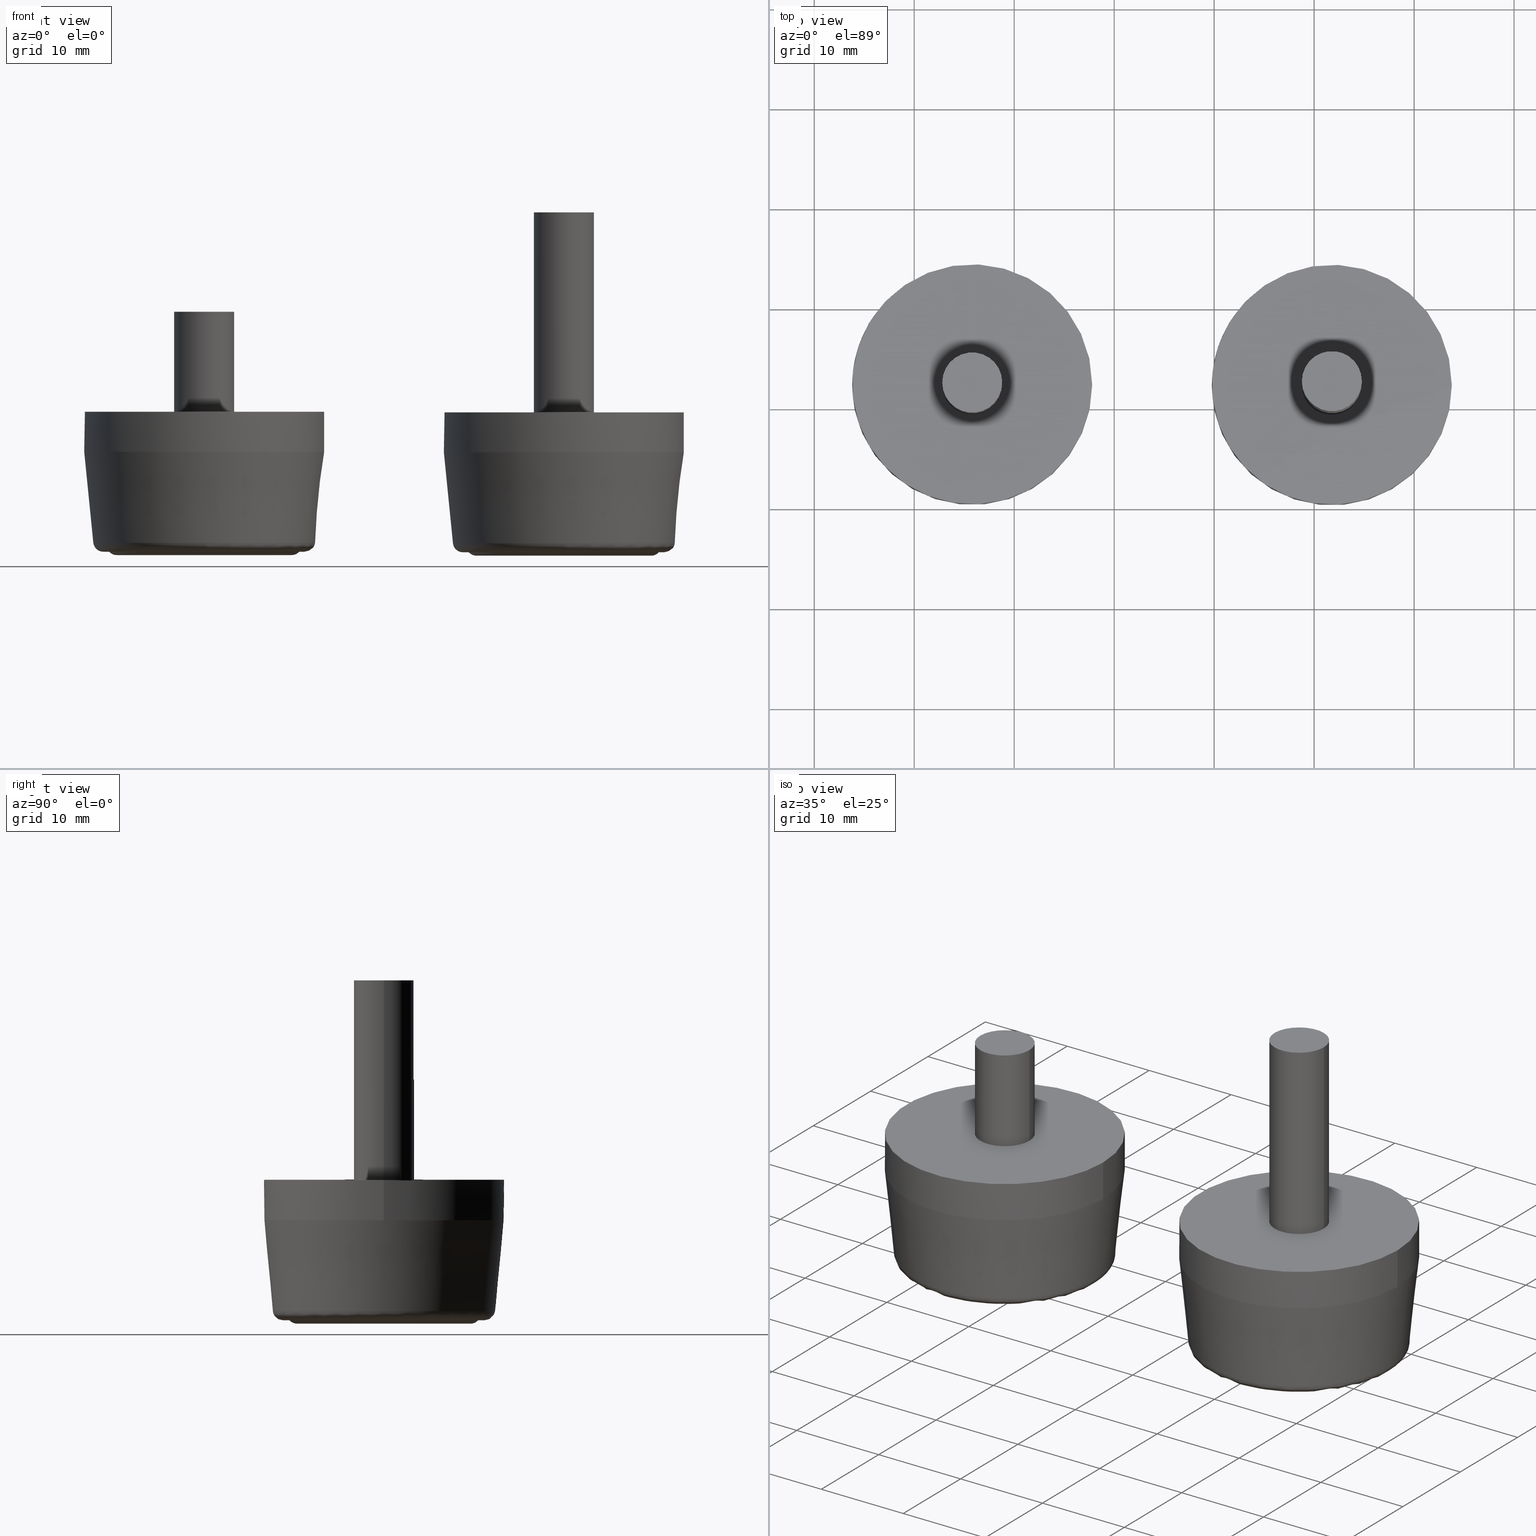
[diagram: canonical four-view strip — front | top / right | iso, engineering-drawing reading convention]
A machine part, canonical four-view strip (front | top / right | iso — engineering-drawing reading convention). The complete STEP part file that produces these views, byte-faithful:
ISO-10303-21;
HEADER;
/* Generated by software containing ST-Developer
 * from STEP Tools, Inc. (www.steptools.com) 
 */

FILE_DESCRIPTION(
/* description */ (''),
/* implementation_level */ '2;1');

FILE_NAME(
/* name */ '\\\\SYNOLOGYNAS\\web\\db2\\PRM6-1\\\X2\B3C4BA74\X0\\\DR_PR
M6-1.stp',
/* time_stamp */ '2023-04-18T16:37:41+09:00',
/* author */ ('user'),
/* organization */ (''),
/* preprocessor_version */ 'ST-DEVELOPER v15.6',
/* originating_system */ 'Autodesk Inventor 2015',
/* authorisation */ '');

FILE_SCHEMA (('AUTOMOTIVE_DESIGN { 1 0 10303 214 3 1 1 }'));
ENDSEC;

DATA;
#10=MECHANICAL_DESIGN_GEOMETRIC_PRESENTATION_REPRESENTATION('',(#23,#24),
#468);
#11=ITEM_DEFINED_TRANSFORMATION($,$,#253,#298);
#12=ITEM_DEFINED_TRANSFORMATION($,$,#275,#299);
#13=(
REPRESENTATION_RELATIONSHIP($,$,#483,#485)
REPRESENTATION_RELATIONSHIP_WITH_TRANSFORMATION(#11)
SHAPE_REPRESENTATION_RELATIONSHIP()
);
#14=(
REPRESENTATION_RELATIONSHIP($,$,#484,#485)
REPRESENTATION_RELATIONSHIP_WITH_TRANSFORMATION(#12)
SHAPE_REPRESENTATION_RELATIONSHIP()
);
#15=CONTEXT_DEPENDENT_SHAPE_REPRESENTATION(#13,#481);
#16=CONTEXT_DEPENDENT_SHAPE_REPRESENTATION(#14,#482);
#17=NEXT_ASSEMBLY_USAGE_OCCURRENCE('DR_PRM6-1(10):1',$,$,#489,#487,$);
#18=NEXT_ASSEMBLY_USAGE_OCCURRENCE('DR_PRM6-1(20):1',$,$,#489,#488,$);
#19=SHAPE_REPRESENTATION_RELATIONSHIP('SRR','None',#483,#21);
#20=SHAPE_REPRESENTATION_RELATIONSHIP('SRR','None',#484,#22);
#21=ADVANCED_BREP_SHAPE_REPRESENTATION($,(#25),#465);
#22=ADVANCED_BREP_SHAPE_REPRESENTATION($,(#26),#466);
#23=STYLED_ITEM('',(#502),#25);
#24=STYLED_ITEM('',(#502),#26);
#25=MANIFOLD_SOLID_BREP('\X2\C194B9ACB4DC\X0\1',#251);
#26=MANIFOLD_SOLID_BREP('\X2\C194B9ACB4DC\X0\1',#252);
#27=CONICAL_SURFACE('',#270,12.,5.71059313749965);
#28=CONICAL_SURFACE('',#292,12.,5.71059313749965);
#29=TOROIDAL_SURFACE('',#258,3.75,1.);
#30=TOROIDAL_SURFACE('',#261,8.75,1.);
#31=TOROIDAL_SURFACE('',#267,10.0950124378879,1.);
#32=TOROIDAL_SURFACE('',#280,3.75,1.);
#33=TOROIDAL_SURFACE('',#283,8.75,1.);
#34=TOROIDAL_SURFACE('',#289,10.0950124378879,1.);
#35=PLANE('',#257);
#36=PLANE('',#264);
#37=PLANE('',#266);
#38=PLANE('',#269);
#39=PLANE('',#274);
#40=PLANE('',#279);
#41=PLANE('',#286);
#42=PLANE('',#288);
#43=PLANE('',#291);
#44=PLANE('',#296);
#45=FACE_BOUND('',#86,.T.);
#46=FACE_BOUND('',#89,.T.);
#47=FACE_BOUND('',#91,.T.);
#48=FACE_BOUND('',#93,.T.);
#49=FACE_BOUND('',#95,.T.);
#50=FACE_BOUND('',#97,.T.);
#51=FACE_BOUND('',#100,.T.);
#52=FACE_BOUND('',#102,.T.);
#53=FACE_BOUND('',#104,.T.);
#54=FACE_BOUND('',#106,.T.);
#55=FACE_BOUND('',#109,.T.);
#56=FACE_BOUND('',#111,.T.);
#57=FACE_BOUND('',#113,.T.);
#58=FACE_BOUND('',#115,.T.);
#59=FACE_BOUND('',#117,.T.);
#60=FACE_BOUND('',#120,.T.);
#61=FACE_BOUND('',#122,.T.);
#62=FACE_BOUND('',#124,.T.);
#63=FACE_OUTER_BOUND('',#85,.T.);
#64=FACE_OUTER_BOUND('',#87,.T.);
#65=FACE_OUTER_BOUND('',#88,.T.);
#66=FACE_OUTER_BOUND('',#90,.T.);
#67=FACE_OUTER_BOUND('',#92,.T.);
#68=FACE_OUTER_BOUND('',#94,.T.);
#69=FACE_OUTER_BOUND('',#96,.T.);
#70=FACE_OUTER_BOUND('',#98,.T.);
#71=FACE_OUTER_BOUND('',#99,.T.);
#72=FACE_OUTER_BOUND('',#101,.T.);
#73=FACE_OUTER_BOUND('',#103,.T.);
#74=FACE_OUTER_BOUND('',#105,.T.);
#75=FACE_OUTER_BOUND('',#107,.T.);
#76=FACE_OUTER_BOUND('',#108,.T.);
#77=FACE_OUTER_BOUND('',#110,.T.);
#78=FACE_OUTER_BOUND('',#112,.T.);
#79=FACE_OUTER_BOUND('',#114,.T.);
#80=FACE_OUTER_BOUND('',#116,.T.);
#81=FACE_OUTER_BOUND('',#118,.T.);
#82=FACE_OUTER_BOUND('',#119,.T.);
#83=FACE_OUTER_BOUND('',#121,.T.);
#84=FACE_OUTER_BOUND('',#123,.T.);
#85=EDGE_LOOP('',(#185));
#86=EDGE_LOOP('',(#186));
#87=EDGE_LOOP('',(#187));
#88=EDGE_LOOP('',(#188));
#89=EDGE_LOOP('',(#189));
#90=EDGE_LOOP('',(#190));
#91=EDGE_LOOP('',(#191));
#92=EDGE_LOOP('',(#192));
#93=EDGE_LOOP('',(#193));
#94=EDGE_LOOP('',(#194));
#95=EDGE_LOOP('',(#195));
#96=EDGE_LOOP('',(#196));
#97=EDGE_LOOP('',(#197));
#98=EDGE_LOOP('',(#198));
#99=EDGE_LOOP('',(#199));
#100=EDGE_LOOP('',(#200));
#101=EDGE_LOOP('',(#201));
#102=EDGE_LOOP('',(#202));
#103=EDGE_LOOP('',(#203));
#104=EDGE_LOOP('',(#204));
#105=EDGE_LOOP('',(#205));
#106=EDGE_LOOP('',(#206));
#107=EDGE_LOOP('',(#207));
#108=EDGE_LOOP('',(#208));
#109=EDGE_LOOP('',(#209));
#110=EDGE_LOOP('',(#210));
#111=EDGE_LOOP('',(#211));
#112=EDGE_LOOP('',(#212));
#113=EDGE_LOOP('',(#213));
#114=EDGE_LOOP('',(#214));
#115=EDGE_LOOP('',(#215));
#116=EDGE_LOOP('',(#216));
#117=EDGE_LOOP('',(#217));
#118=EDGE_LOOP('',(#218));
#119=EDGE_LOOP('',(#219));
#120=EDGE_LOOP('',(#220));
#121=EDGE_LOOP('',(#221));
#122=EDGE_LOOP('',(#222));
#123=EDGE_LOOP('',(#223));
#124=EDGE_LOOP('',(#224));
#125=CIRCLE('',#255,3.);
#126=CIRCLE('',#256,3.);
#127=CIRCLE('',#259,3.);
#128=CIRCLE('',#260,4.5);
#129=CIRCLE('',#262,8.);
#130=CIRCLE('',#263,9.5);
#131=CIRCLE('',#265,10.0950124378879);
#132=CIRCLE('',#268,11.0900496280979);
#133=CIRCLE('',#271,12.);
#134=CIRCLE('',#273,12.);
#135=CIRCLE('',#277,3.);
#136=CIRCLE('',#278,3.);
#137=CIRCLE('',#281,3.);
#138=CIRCLE('',#282,4.5);
#139=CIRCLE('',#284,8.);
#140=CIRCLE('',#285,9.5);
#141=CIRCLE('',#287,10.0950124378879);
#142=CIRCLE('',#290,11.0900496280979);
#143=CIRCLE('',#293,12.);
#144=CIRCLE('',#295,12.);
#145=VERTEX_POINT('',#396);
#146=VERTEX_POINT('',#398);
#147=VERTEX_POINT('',#402);
#148=VERTEX_POINT('',#404);
#149=VERTEX_POINT('',#407);
#150=VERTEX_POINT('',#409);
#151=VERTEX_POINT('',#412);
#152=VERTEX_POINT('',#416);
#153=VERTEX_POINT('',#420);
#154=VERTEX_POINT('',#423);
#155=VERTEX_POINT('',#428);
#156=VERTEX_POINT('',#430);
#157=VERTEX_POINT('',#434);
#158=VERTEX_POINT('',#436);
#159=VERTEX_POINT('',#439);
#160=VERTEX_POINT('',#441);
#161=VERTEX_POINT('',#444);
#162=VERTEX_POINT('',#448);
#163=VERTEX_POINT('',#452);
#164=VERTEX_POINT('',#455);
#165=EDGE_CURVE('',#145,#145,#125,.T.);
#166=EDGE_CURVE('',#146,#146,#126,.T.);
#167=EDGE_CURVE('',#147,#147,#127,.T.);
#168=EDGE_CURVE('',#148,#148,#128,.T.);
#169=EDGE_CURVE('',#149,#149,#129,.T.);
#170=EDGE_CURVE('',#150,#150,#130,.T.);
#171=EDGE_CURVE('',#151,#151,#131,.T.);
#172=EDGE_CURVE('',#152,#152,#132,.T.);
#173=EDGE_CURVE('',#153,#153,#133,.T.);
#174=EDGE_CURVE('',#154,#154,#134,.T.);
#175=EDGE_CURVE('',#155,#155,#135,.T.);
#176=EDGE_CURVE('',#156,#156,#136,.T.);
#177=EDGE_CURVE('',#157,#157,#137,.T.);
#178=EDGE_CURVE('',#158,#158,#138,.T.);
#179=EDGE_CURVE('',#159,#159,#139,.T.);
#180=EDGE_CURVE('',#160,#160,#140,.T.);
#181=EDGE_CURVE('',#161,#161,#141,.T.);
#182=EDGE_CURVE('',#162,#162,#142,.T.);
#183=EDGE_CURVE('',#163,#163,#143,.T.);
#184=EDGE_CURVE('',#164,#164,#144,.T.);
#185=ORIENTED_EDGE('',*,*,#165,.F.);
#186=ORIENTED_EDGE('',*,*,#166,.F.);
#187=ORIENTED_EDGE('',*,*,#165,.T.);
#188=ORIENTED_EDGE('',*,*,#167,.F.);
#189=ORIENTED_EDGE('',*,*,#168,.F.);
#190=ORIENTED_EDGE('',*,*,#169,.F.);
#191=ORIENTED_EDGE('',*,*,#170,.F.);
#192=ORIENTED_EDGE('',*,*,#171,.F.);
#193=ORIENTED_EDGE('',*,*,#170,.T.);
#194=ORIENTED_EDGE('',*,*,#169,.T.);
#195=ORIENTED_EDGE('',*,*,#168,.T.);
#196=ORIENTED_EDGE('',*,*,#171,.T.);
#197=ORIENTED_EDGE('',*,*,#172,.T.);
#198=ORIENTED_EDGE('',*,*,#167,.T.);
#199=ORIENTED_EDGE('',*,*,#173,.T.);
#200=ORIENTED_EDGE('',*,*,#172,.F.);
#201=ORIENTED_EDGE('',*,*,#174,.F.);
#202=ORIENTED_EDGE('',*,*,#173,.F.);
#203=ORIENTED_EDGE('',*,*,#174,.T.);
#204=ORIENTED_EDGE('',*,*,#166,.T.);
#205=ORIENTED_EDGE('',*,*,#175,.F.);
#206=ORIENTED_EDGE('',*,*,#176,.F.);
#207=ORIENTED_EDGE('',*,*,#175,.T.);
#208=ORIENTED_EDGE('',*,*,#177,.F.);
#209=ORIENTED_EDGE('',*,*,#178,.F.);
#210=ORIENTED_EDGE('',*,*,#179,.F.);
#211=ORIENTED_EDGE('',*,*,#180,.F.);
#212=ORIENTED_EDGE('',*,*,#181,.F.);
#213=ORIENTED_EDGE('',*,*,#180,.T.);
#214=ORIENTED_EDGE('',*,*,#179,.T.);
#215=ORIENTED_EDGE('',*,*,#178,.T.);
#216=ORIENTED_EDGE('',*,*,#181,.T.);
#217=ORIENTED_EDGE('',*,*,#182,.T.);
#218=ORIENTED_EDGE('',*,*,#177,.T.);
#219=ORIENTED_EDGE('',*,*,#183,.T.);
#220=ORIENTED_EDGE('',*,*,#182,.F.);
#221=ORIENTED_EDGE('',*,*,#184,.F.);
#222=ORIENTED_EDGE('',*,*,#183,.F.);
#223=ORIENTED_EDGE('',*,*,#184,.T.);
#224=ORIENTED_EDGE('',*,*,#176,.T.);
#225=CYLINDRICAL_SURFACE('',#254,3.);
#226=CYLINDRICAL_SURFACE('',#272,12.);
#227=CYLINDRICAL_SURFACE('',#276,3.);
#228=CYLINDRICAL_SURFACE('',#294,12.);
#229=ADVANCED_FACE('',(#63,#45),#225,.T.);
#230=ADVANCED_FACE('',(#64),#35,.T.);
#231=ADVANCED_FACE('',(#65,#46),#29,.T.);
#232=ADVANCED_FACE('',(#66,#47),#30,.T.);
#233=ADVANCED_FACE('',(#67,#48),#36,.F.);
#234=ADVANCED_FACE('',(#68,#49),#37,.F.);
#235=ADVANCED_FACE('',(#69,#50),#31,.T.);
#236=ADVANCED_FACE('',(#70),#38,.F.);
#237=ADVANCED_FACE('',(#71,#51),#27,.T.);
#238=ADVANCED_FACE('',(#72,#52),#226,.T.);
#239=ADVANCED_FACE('',(#73,#53),#39,.T.);
#240=ADVANCED_FACE('',(#74,#54),#227,.T.);
#241=ADVANCED_FACE('',(#75),#40,.T.);
#242=ADVANCED_FACE('',(#76,#55),#32,.T.);
#243=ADVANCED_FACE('',(#77,#56),#33,.T.);
#244=ADVANCED_FACE('',(#78,#57),#41,.F.);
#245=ADVANCED_FACE('',(#79,#58),#42,.F.);
#246=ADVANCED_FACE('',(#80,#59),#34,.T.);
#247=ADVANCED_FACE('',(#81),#43,.F.);
#248=ADVANCED_FACE('',(#82,#60),#28,.T.);
#249=ADVANCED_FACE('',(#83,#61),#228,.T.);
#250=ADVANCED_FACE('',(#84,#62),#44,.T.);
#251=CLOSED_SHELL('',(#229,#230,#231,#232,#233,#234,#235,#236,#237,#238,
#239));
#252=CLOSED_SHELL('',(#240,#241,#242,#243,#244,#245,#246,#247,#248,#249,
#250));
#253=AXIS2_PLACEMENT_3D('placement',#394,#300,#301);
#254=AXIS2_PLACEMENT_3D('',#395,#302,#303);
#255=AXIS2_PLACEMENT_3D('',#397,#304,#305);
#256=AXIS2_PLACEMENT_3D('',#399,#306,#307);
#257=AXIS2_PLACEMENT_3D('',#400,#308,#309);
#258=AXIS2_PLACEMENT_3D('',#401,#310,#311);
#259=AXIS2_PLACEMENT_3D('',#403,#312,#313);
#260=AXIS2_PLACEMENT_3D('',#405,#314,#315);
#261=AXIS2_PLACEMENT_3D('',#406,#316,#317);
#262=AXIS2_PLACEMENT_3D('',#408,#318,#319);
#263=AXIS2_PLACEMENT_3D('',#410,#320,#321);
#264=AXIS2_PLACEMENT_3D('',#411,#322,#323);
#265=AXIS2_PLACEMENT_3D('',#413,#324,#325);
#266=AXIS2_PLACEMENT_3D('',#414,#326,#327);
#267=AXIS2_PLACEMENT_3D('',#415,#328,#329);
#268=AXIS2_PLACEMENT_3D('',#417,#330,#331);
#269=AXIS2_PLACEMENT_3D('',#418,#332,#333);
#270=AXIS2_PLACEMENT_3D('',#419,#334,#335);
#271=AXIS2_PLACEMENT_3D('',#421,#336,#337);
#272=AXIS2_PLACEMENT_3D('',#422,#338,#339);
#273=AXIS2_PLACEMENT_3D('',#424,#340,#341);
#274=AXIS2_PLACEMENT_3D('',#425,#342,#343);
#275=AXIS2_PLACEMENT_3D('placement',#426,#344,#345);
#276=AXIS2_PLACEMENT_3D('',#427,#346,#347);
#277=AXIS2_PLACEMENT_3D('',#429,#348,#349);
#278=AXIS2_PLACEMENT_3D('',#431,#350,#351);
#279=AXIS2_PLACEMENT_3D('',#432,#352,#353);
#280=AXIS2_PLACEMENT_3D('',#433,#354,#355);
#281=AXIS2_PLACEMENT_3D('',#435,#356,#357);
#282=AXIS2_PLACEMENT_3D('',#437,#358,#359);
#283=AXIS2_PLACEMENT_3D('',#438,#360,#361);
#284=AXIS2_PLACEMENT_3D('',#440,#362,#363);
#285=AXIS2_PLACEMENT_3D('',#442,#364,#365);
#286=AXIS2_PLACEMENT_3D('',#443,#366,#367);
#287=AXIS2_PLACEMENT_3D('',#445,#368,#369);
#288=AXIS2_PLACEMENT_3D('',#446,#370,#371);
#289=AXIS2_PLACEMENT_3D('',#447,#372,#373);
#290=AXIS2_PLACEMENT_3D('',#449,#374,#375);
#291=AXIS2_PLACEMENT_3D('',#450,#376,#377);
#292=AXIS2_PLACEMENT_3D('',#451,#378,#379);
#293=AXIS2_PLACEMENT_3D('',#453,#380,#381);
#294=AXIS2_PLACEMENT_3D('',#454,#382,#383);
#295=AXIS2_PLACEMENT_3D('',#456,#384,#385);
#296=AXIS2_PLACEMENT_3D('',#457,#386,#387);
#297=AXIS2_PLACEMENT_3D('placement',#458,#388,#389);
#298=AXIS2_PLACEMENT_3D('',#459,#390,#391);
#299=AXIS2_PLACEMENT_3D('',#460,#392,#393);
#300=DIRECTION('axis',(0.,0.,1.));
#301=DIRECTION('refdir',(1.,0.,0.));
#302=DIRECTION('center_axis',(0.,0.,1.));
#303=DIRECTION('ref_axis',(-1.,0.,0.));
#304=DIRECTION('center_axis',(0.,0.,1.));
#305=DIRECTION('ref_axis',(-1.,0.,0.));
#306=DIRECTION('center_axis',(0.,0.,-1.));
#307=DIRECTION('ref_axis',(-1.,0.,0.));
#308=DIRECTION('center_axis',(0.,0.,1.));
#309=DIRECTION('ref_axis',(1.,0.,0.));
#310=DIRECTION('center_axis',(0.,0.,-1.));
#311=DIRECTION('ref_axis',(-1.,0.,0.));
#312=DIRECTION('center_axis',(0.,0.,-1.));
#313=DIRECTION('ref_axis',(1.,0.,0.));
#314=DIRECTION('center_axis',(0.,0.,1.));
#315=DIRECTION('ref_axis',(1.,0.,0.));
#316=DIRECTION('center_axis',(0.,0.,-1.));
#317=DIRECTION('ref_axis',(-1.,0.,0.));
#318=DIRECTION('center_axis',(0.,0.,-1.));
#319=DIRECTION('ref_axis',(1.,0.,0.));
#320=DIRECTION('center_axis',(0.,0.,1.));
#321=DIRECTION('ref_axis',(1.,0.,0.));
#322=DIRECTION('center_axis',(0.,0.,1.));
#323=DIRECTION('ref_axis',(1.,0.,0.));
#324=DIRECTION('center_axis',(0.,0.,1.));
#325=DIRECTION('ref_axis',(1.,-1.22464679914735E-16,0.));
#326=DIRECTION('center_axis',(0.,0.,1.));
#327=DIRECTION('ref_axis',(1.,0.,0.));
#328=DIRECTION('center_axis',(0.,0.,1.));
#329=DIRECTION('ref_axis',(1.,0.,0.));
#330=DIRECTION('center_axis',(0.,0.,-1.));
#331=DIRECTION('ref_axis',(1.,-1.22464679914735E-16,0.));
#332=DIRECTION('center_axis',(0.,0.,1.));
#333=DIRECTION('ref_axis',(1.,0.,0.));
#334=DIRECTION('center_axis',(0.,0.,1.));
#335=DIRECTION('ref_axis',(-1.,0.,0.));
#336=DIRECTION('center_axis',(0.,0.,-1.));
#337=DIRECTION('ref_axis',(-1.,0.,0.));
#338=DIRECTION('center_axis',(0.,0.,1.));
#339=DIRECTION('ref_axis',(-1.,0.,0.));
#340=DIRECTION('center_axis',(0.,0.,1.));
#341=DIRECTION('ref_axis',(-1.,0.,0.));
#342=DIRECTION('center_axis',(0.,0.,1.));
#343=DIRECTION('ref_axis',(1.,0.,0.));
#344=DIRECTION('axis',(0.,0.,1.));
#345=DIRECTION('refdir',(1.,0.,0.));
#346=DIRECTION('center_axis',(0.,0.,1.));
#347=DIRECTION('ref_axis',(-1.,0.,0.));
#348=DIRECTION('center_axis',(0.,0.,1.));
#349=DIRECTION('ref_axis',(-1.,0.,0.));
#350=DIRECTION('center_axis',(0.,0.,-1.));
#351=DIRECTION('ref_axis',(-1.,0.,0.));
#352=DIRECTION('center_axis',(0.,0.,1.));
#353=DIRECTION('ref_axis',(1.,0.,0.));
#354=DIRECTION('center_axis',(0.,0.,-1.));
#355=DIRECTION('ref_axis',(-1.,0.,0.));
#356=DIRECTION('center_axis',(0.,0.,-1.));
#357=DIRECTION('ref_axis',(1.,0.,0.));
#358=DIRECTION('center_axis',(0.,0.,1.));
#359=DIRECTION('ref_axis',(1.,0.,0.));
#360=DIRECTION('center_axis',(0.,0.,-1.));
#361=DIRECTION('ref_axis',(-1.,0.,0.));
#362=DIRECTION('center_axis',(0.,0.,-1.));
#363=DIRECTION('ref_axis',(1.,0.,0.));
#364=DIRECTION('center_axis',(0.,0.,1.));
#365=DIRECTION('ref_axis',(1.,0.,0.));
#366=DIRECTION('center_axis',(0.,0.,1.));
#367=DIRECTION('ref_axis',(1.,0.,0.));
#368=DIRECTION('center_axis',(0.,0.,1.));
#369=DIRECTION('ref_axis',(1.,-1.22464679914735E-16,0.));
#370=DIRECTION('center_axis',(0.,0.,1.));
#371=DIRECTION('ref_axis',(1.,0.,0.));
#372=DIRECTION('center_axis',(0.,0.,1.));
#373=DIRECTION('ref_axis',(1.,0.,0.));
#374=DIRECTION('center_axis',(0.,0.,-1.));
#375=DIRECTION('ref_axis',(1.,-1.22464679914735E-16,0.));
#376=DIRECTION('center_axis',(0.,0.,1.));
#377=DIRECTION('ref_axis',(1.,0.,0.));
#378=DIRECTION('center_axis',(0.,0.,1.));
#379=DIRECTION('ref_axis',(-1.,0.,0.));
#380=DIRECTION('center_axis',(0.,0.,-1.));
#381=DIRECTION('ref_axis',(-1.,0.,0.));
#382=DIRECTION('center_axis',(0.,0.,1.));
#383=DIRECTION('ref_axis',(-1.,0.,0.));
#384=DIRECTION('center_axis',(0.,0.,1.));
#385=DIRECTION('ref_axis',(-1.,0.,0.));
#386=DIRECTION('center_axis',(0.,0.,1.));
#387=DIRECTION('ref_axis',(1.,0.,0.));
#388=DIRECTION('axis',(0.,0.,1.));
#389=DIRECTION('refdir',(1.,0.,0.));
#390=DIRECTION('',(5.55111512312578E-17,0.,1.));
#391=DIRECTION('',(1.,-1.11022302462516E-16,-5.55111512312578E-17));
#392=DIRECTION('',(4.35415592470176E-16,9.43689570931381E-16,1.));
#393=DIRECTION('',(1.,2.36616282123236E-15,-4.35415592470178E-16));
#394=CARTESIAN_POINT('',(0.,0.,0.));
#395=CARTESIAN_POINT('Origin',(0.,0.,14.));
#396=CARTESIAN_POINT('',(3.,3.67394039744206E-16,24.));
#397=CARTESIAN_POINT('Origin',(0.,0.,24.));
#398=CARTESIAN_POINT('',(3.,3.67394039744206E-16,14.));
#399=CARTESIAN_POINT('Origin',(0.,0.,14.));
#400=CARTESIAN_POINT('Origin',(-1.84813812287733E-16,-7.70988211545247E-17,
24.));
#401=CARTESIAN_POINT('Origin',(0.,0.,0.661437827766148));
#402=CARTESIAN_POINT('',(-3.,3.67394039744206E-16,0.));
#403=CARTESIAN_POINT('Origin',(0.,0.,0.));
#404=CARTESIAN_POINT('',(-4.5,5.51091059616309E-16,0.));
#405=CARTESIAN_POINT('Origin',(0.,0.,0.));
#406=CARTESIAN_POINT('Origin',(0.,0.,0.661437827766149));
#407=CARTESIAN_POINT('',(-8.,9.79717439317883E-16,0.));
#408=CARTESIAN_POINT('Origin',(0.,0.,0.));
#409=CARTESIAN_POINT('',(-9.5,1.16341445918999E-15,0.));
#410=CARTESIAN_POINT('Origin',(0.,0.,0.));
#411=CARTESIAN_POINT('Origin',(0.,0.,0.));
#412=CARTESIAN_POINT('',(-10.0950124378879,0.,0.));
#413=CARTESIAN_POINT('Origin',(0.,0.,0.));
#414=CARTESIAN_POINT('Origin',(0.,0.,0.));
#415=CARTESIAN_POINT('Origin',(0.,0.,1.));
#416=CARTESIAN_POINT('',(-11.0900496280979,2.71627875588708E-15,0.900496280979001));
#417=CARTESIAN_POINT('Origin',(0.,0.,0.900496280979001));
#418=CARTESIAN_POINT('Origin',(0.,0.,0.));
#419=CARTESIAN_POINT('Origin',(0.,0.,10.));
#420=CARTESIAN_POINT('',(12.,1.46957615897682E-15,10.));
#421=CARTESIAN_POINT('Origin',(0.,0.,10.));
#422=CARTESIAN_POINT('Origin',(0.,0.,10.));
#423=CARTESIAN_POINT('',(12.,1.46957615897682E-15,14.));
#424=CARTESIAN_POINT('Origin',(0.,0.,14.));
#425=CARTESIAN_POINT('Origin',(-7.39255249150933E-16,-3.08395284618099E-16,
14.));
#426=CARTESIAN_POINT('',(0.,0.,0.));
#427=CARTESIAN_POINT('Origin',(0.,0.,14.));
#428=CARTESIAN_POINT('',(3.,3.67394039744206E-16,34.));
#429=CARTESIAN_POINT('Origin',(0.,0.,34.));
#430=CARTESIAN_POINT('',(3.,3.67394039744206E-16,14.));
#431=CARTESIAN_POINT('Origin',(0.,0.,14.));
#432=CARTESIAN_POINT('Origin',(-1.84812801154609E-16,-7.70988211545247E-17,
34.));
#433=CARTESIAN_POINT('Origin',(0.,0.,0.661437827766148));
#434=CARTESIAN_POINT('',(-3.,3.67394039744206E-16,0.));
#435=CARTESIAN_POINT('Origin',(0.,0.,0.));
#436=CARTESIAN_POINT('',(-4.5,5.51091059616309E-16,0.));
#437=CARTESIAN_POINT('Origin',(0.,0.,0.));
#438=CARTESIAN_POINT('Origin',(0.,0.,0.661437827766149));
#439=CARTESIAN_POINT('',(-8.,9.79717439317883E-16,0.));
#440=CARTESIAN_POINT('Origin',(0.,0.,0.));
#441=CARTESIAN_POINT('',(-9.5,1.16341445918999E-15,0.));
#442=CARTESIAN_POINT('Origin',(0.,0.,0.));
#443=CARTESIAN_POINT('Origin',(0.,0.,0.));
#444=CARTESIAN_POINT('',(-10.0950124378879,0.,0.));
#445=CARTESIAN_POINT('Origin',(0.,0.,0.));
#446=CARTESIAN_POINT('Origin',(0.,0.,0.));
#447=CARTESIAN_POINT('Origin',(0.,0.,1.));
#448=CARTESIAN_POINT('',(-11.0900496280979,2.71627875588708E-15,0.900496280979001));
#449=CARTESIAN_POINT('Origin',(0.,0.,0.900496280979001));
#450=CARTESIAN_POINT('Origin',(0.,0.,0.));
#451=CARTESIAN_POINT('Origin',(0.,0.,10.));
#452=CARTESIAN_POINT('',(12.,1.46957615897682E-15,10.));
#453=CARTESIAN_POINT('Origin',(0.,0.,10.));
#454=CARTESIAN_POINT('Origin',(0.,0.,10.));
#455=CARTESIAN_POINT('',(12.,1.46957615897682E-15,14.));
#456=CARTESIAN_POINT('Origin',(0.,0.,14.));
#457=CARTESIAN_POINT('Origin',(-7.39255249150933E-16,-3.08395284618099E-16,
14.));
#458=CARTESIAN_POINT('',(0.,0.,0.));
#459=CARTESIAN_POINT('',(-14.2023344187189,2.28433839482781,-11.8307189138831));
#460=CARTESIAN_POINT('',(21.7706702930659,2.2394422991468,-11.8866266752055));
#461=UNCERTAINTY_MEASURE_WITH_UNIT(LENGTH_MEASURE(0.01),#469,
'DISTANCE_ACCURACY_VALUE',
'Maximum model space distance between geometric entities at asserted c
onnectivities');
#462=UNCERTAINTY_MEASURE_WITH_UNIT(LENGTH_MEASURE(0.01),#469,
'DISTANCE_ACCURACY_VALUE',
'Maximum model space distance between geometric entities at asserted c
onnectivities');
#463=UNCERTAINTY_MEASURE_WITH_UNIT(LENGTH_MEASURE(0.01),#469,
'DISTANCE_ACCURACY_VALUE',
'Maximum model space distance between geometric entities at asserted c
onnectivities');
#464=UNCERTAINTY_MEASURE_WITH_UNIT(LENGTH_MEASURE(1.E-6),#469,
'DISTANCE_ACCURACY_VALUE',
'Maximum model space distance between geometric entities at asserted c
onnectivities');
#465=(
GEOMETRIC_REPRESENTATION_CONTEXT(3)
GLOBAL_UNCERTAINTY_ASSIGNED_CONTEXT((#461))
GLOBAL_UNIT_ASSIGNED_CONTEXT((#469,#472,#470))
REPRESENTATION_CONTEXT('','3D')
);
#466=(
GEOMETRIC_REPRESENTATION_CONTEXT(3)
GLOBAL_UNCERTAINTY_ASSIGNED_CONTEXT((#462))
GLOBAL_UNIT_ASSIGNED_CONTEXT((#469,#472,#470))
REPRESENTATION_CONTEXT('','3D')
);
#467=(
GEOMETRIC_REPRESENTATION_CONTEXT(3)
GLOBAL_UNCERTAINTY_ASSIGNED_CONTEXT((#463))
GLOBAL_UNIT_ASSIGNED_CONTEXT((#469,#472,#470))
REPRESENTATION_CONTEXT('','3D')
);
#468=(
GEOMETRIC_REPRESENTATION_CONTEXT(3)
GLOBAL_UNCERTAINTY_ASSIGNED_CONTEXT((#464))
GLOBAL_UNIT_ASSIGNED_CONTEXT((#469,#472,#470))
REPRESENTATION_CONTEXT('','3D')
);
#469=(
LENGTH_UNIT()
NAMED_UNIT(*)
SI_UNIT(.MILLI.,.METRE.)
);
#470=(
NAMED_UNIT(*)
SI_UNIT($,.STERADIAN.)
SOLID_ANGLE_UNIT()
);
#471=DIMENSIONAL_EXPONENTS(0.,0.,0.,0.,0.,0.,0.);
#472=(
CONVERSION_BASED_UNIT('degree',#474)
NAMED_UNIT(#471)
PLANE_ANGLE_UNIT()
);
#473=(
NAMED_UNIT(*)
PLANE_ANGLE_UNIT()
SI_UNIT($,.RADIAN.)
);
#474=PLANE_ANGLE_MEASURE_WITH_UNIT(PLANE_ANGLE_MEASURE(0.01745329252),#473);
#475=SHAPE_DEFINITION_REPRESENTATION(#478,#483);
#476=SHAPE_DEFINITION_REPRESENTATION(#479,#484);
#477=SHAPE_DEFINITION_REPRESENTATION(#480,#485);
#478=PRODUCT_DEFINITION_SHAPE('',$,#487);
#479=PRODUCT_DEFINITION_SHAPE('',$,#488);
#480=PRODUCT_DEFINITION_SHAPE('',$,#489);
#481=PRODUCT_DEFINITION_SHAPE($,$,#17);
#482=PRODUCT_DEFINITION_SHAPE($,$,#18);
#483=SHAPE_REPRESENTATION('',(#253),#465);
#484=SHAPE_REPRESENTATION('',(#275),#466);
#485=SHAPE_REPRESENTATION('',(#297,#298,#299),#467);
#486=PRODUCT_DEFINITION_CONTEXT('part definition',#497,'design');
#487=PRODUCT_DEFINITION('DR_PRM6-1(10)','DR_PRM6-1(10)',#490,#486);
#488=PRODUCT_DEFINITION('DR_PRM6-1(20)','DR_PRM6-1(20)',#491,#486);
#489=PRODUCT_DEFINITION('DR_PRM6-1','DR_PRM6-1',#492,#486);
#490=PRODUCT_DEFINITION_FORMATION('',$,#499);
#491=PRODUCT_DEFINITION_FORMATION('',$,#500);
#492=PRODUCT_DEFINITION_FORMATION('',$,#501);
#493=PRODUCT_RELATED_PRODUCT_CATEGORY('DR_PRM6-1(10)','DR_PRM6-1(10)',(#499));
#494=PRODUCT_RELATED_PRODUCT_CATEGORY('DR_PRM6-1(20)','DR_PRM6-1(20)',(#500));
#495=PRODUCT_RELATED_PRODUCT_CATEGORY('DR_PRM6-1','DR_PRM6-1',(#501));
#496=APPLICATION_PROTOCOL_DEFINITION('international standard',
'automotive_design',2009,#497);
#497=APPLICATION_CONTEXT(
'Core Data for Automotive Mechanical Design Process');
#498=PRODUCT_CONTEXT('part definition',#497,'mechanical');
#499=PRODUCT('DR_PRM6-1(10)','DR_PRM6-1(10)',$,(#498));
#500=PRODUCT('DR_PRM6-1(20)','DR_PRM6-1(20)',$,(#498));
#501=PRODUCT('DR_PRM6-1','DR_PRM6-1',$,(#498));
#502=PRESENTATION_STYLE_ASSIGNMENT((#503));
#503=SURFACE_STYLE_USAGE(.BOTH.,#504);
#504=SURFACE_SIDE_STYLE($,(#505));
#505=SURFACE_STYLE_FILL_AREA(#506);
#506=FILL_AREA_STYLE($,(#507));
#507=FILL_AREA_STYLE_COLOUR($,#508);
#508=COLOUR_RGB('',1.,1.,1.);
ENDSEC;
END-ISO-10303-21;
